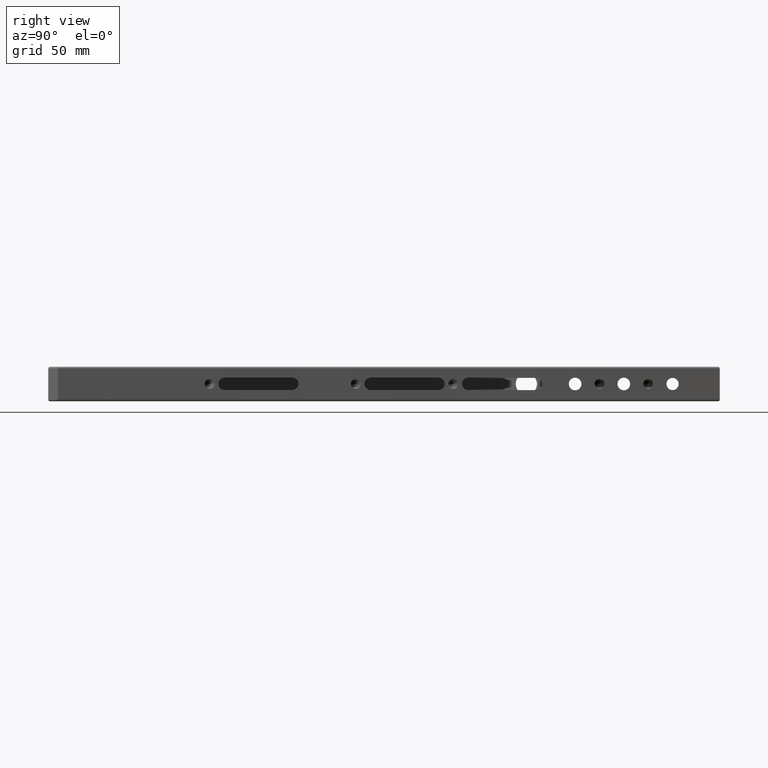
[diagram: clean part render]
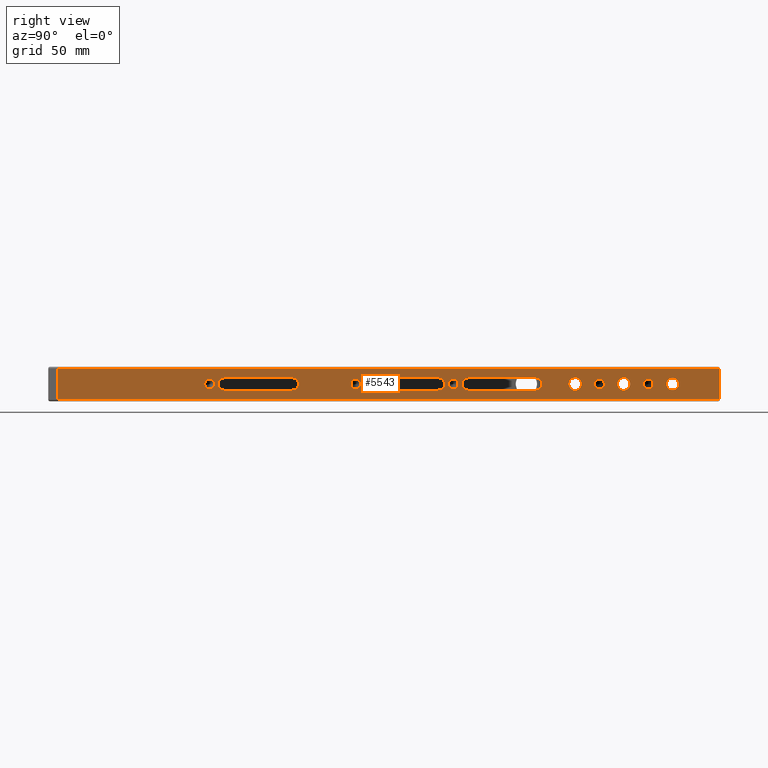
[diagram: same view with one face highlighted and labeled with its STEP entity id]
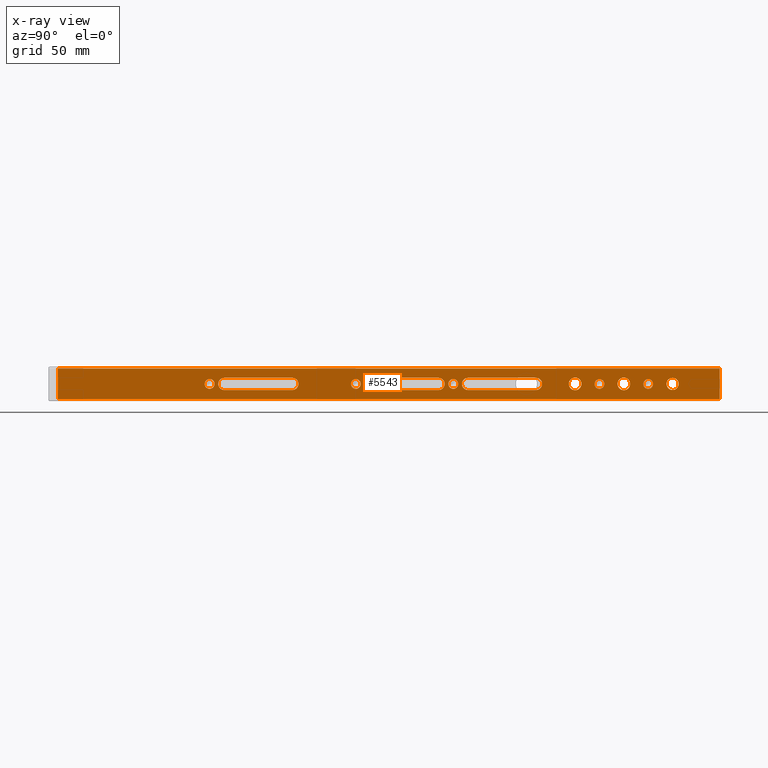
[diagram: x-ray of the same camera — body ghosted, the highlighted face saturated]
A machine part, right view. The second image highlights one B-rep face of the part: STEP entity #5543.
The next image is the same camera in x-ray: the body ghosted, the highlighted face saturated — about 0% of this face is hidden behind the body in this view.
In plain terms, the highlighted planar face has unit normal (-1, 0, 0).
Its self-contained STEP definition (entity closure, byte-faithful):
#3 = VERTEX_POINT ( 'NONE', #4955 ) ;
#4 = CIRCLE ( 'NONE', #3003, 2.552699999999990900 ) ;
#6 = ORIENTED_EDGE ( 'NONE', *, *, #3664, .F. ) ;
#60 = EDGE_LOOP ( 'NONE', ( #2149, #4770 ) ) ;
#66 = DIRECTION ( 'NONE',  ( 0.0000000000000000000, 0.0000000000000000000, -1.000000000000000000 ) ) ;
#86 = EDGE_CURVE ( 'NONE', #4364, #3, #5288, .T. ) ;
#92 = CARTESIAN_POINT ( 'NONE',  ( 150.0000000000000000, 218.7999999999999800, 5.800000000000471400 ) ) ;
#93 = DIRECTION ( 'NONE',  ( 1.000000000000000000, -0.0000000000000000000, -0.0000000000000000000 ) ) ;
#110 = CARTESIAN_POINT ( 'NONE',  ( 150.0000000000000000, 274.6000000000000800, 9.000000000000007100 ) ) ;
#131 = DIRECTION ( 'NONE',  ( 1.000000000000000000, 0.0000000000000000000, 0.0000000000000000000 ) ) ;
#140 = ORIENTED_EDGE ( 'NONE', *, *, #2060, .T. ) ;
#142 = ORIENTED_EDGE ( 'NONE', *, *, #4327, .T. ) ;
#168 = CARTESIAN_POINT ( 'NONE',  ( 150.0000000000000000, 312.7000000000000500, 9.000000000000007100 ) ) ;
#191 = EDGE_CURVE ( 'NONE', #4142, #1281, #2075, .T. ) ;
#196 = CARTESIAN_POINT ( 'NONE',  ( 150.0000000000000000, 287.3000000000000700, 6.447299999999989600 ) ) ;
#216 = VERTEX_POINT ( 'NONE', #1004 ) ;
#221 = CARTESIAN_POINT ( 'NONE',  ( 150.0000000000000000, 160.3000000000000100, 8.999999999999952000 ) ) ;
#222 = DIRECTION ( 'NONE',  ( 1.000000000000000000, -0.0000000000000000000, -0.0000000000000000000 ) ) ;
#231 = LINE ( 'NONE', #3058, #4709 ) ;
#233 = EDGE_CURVE ( 'NONE', #1765, #4706, #3208, .T. ) ;
#240 = CARTESIAN_POINT ( 'NONE',  ( 150.0000000000000000, 84.10000000000000900, 11.55269999999995700 ) ) ;
#256 = ORIENTED_EDGE ( 'NONE', *, *, #2995, .F. ) ;
#262 = VERTEX_POINT ( 'NONE', #2353 ) ;
#268 = DIRECTION ( 'NONE',  ( -0.0000000000000000000, -1.000000000000000000, -0.0000000000000000000 ) ) ;
#272 = EDGE_CURVE ( 'NONE', #1729, #1273, #2815, .T. ) ;
#313 = EDGE_CURVE ( 'NONE', #4472, #262, #1532, .T. ) ;
#341 = AXIS2_PLACEMENT_3D ( 'NONE', #4188, #371, #1256 ) ;
#370 = CIRCLE ( 'NONE', #705, 2.552700000000005100 ) ;
#371 = DIRECTION ( 'NONE',  ( -1.000000000000000000, -0.0000000000000000000, -0.0000000000000000000 ) ) ;
#409 = AXIS2_PLACEMENT_3D ( 'NONE', #2482, #5512, #2904 ) ;
#423 = CARTESIAN_POINT ( 'NONE',  ( 150.0000000000000000, 274.6000000000000800, 9.000000000000007100 ) ) ;
#424 = CARTESIAN_POINT ( 'NONE',  ( 150.0000000000000000, 211.1000000000000500, 6.447300000000017100 ) ) ;
#444 = DIRECTION ( 'NONE',  ( -1.000000000000000000, 0.0000000000000000000, 0.0000000000000000000 ) ) ;
#500 = CARTESIAN_POINT ( 'NONE',  ( 149.9999999999999700, 325.4000000000000300, 5.825000000000024200 ) ) ;
#502 = AXIS2_PLACEMENT_3D ( 'NONE', #1570, #4596, #2004 ) ;
#533 = DIRECTION ( 'NONE',  ( 0.0000000000000000000, 0.0000000000000000000, -1.000000000000000000 ) ) ;
#557 = DIRECTION ( 'NONE',  ( 0.0000000000000000000, 0.0000000000000000000, -1.000000000000000000 ) ) ;
#589 = AXIS2_PLACEMENT_3D ( 'NONE', #3618, #1026, #4065 ) ;
#591 = DIRECTION ( 'NONE',  ( 0.0000000000000000000, 0.0000000000000000000, -1.000000000000000000 ) ) ;
#594 = FACE_BOUND ( 'NONE', #4239, .T. ) ;
#611 = DIRECTION ( 'NONE',  ( 1.000000000000000000, -0.0000000000000000000, -0.0000000000000000000 ) ) ;
#636 = CIRCLE ( 'NONE', #409, 2.552699999999990900 ) ;
#642 = DIRECTION ( 'NONE',  ( 1.000000000000000000, 0.0000000000000000000, 0.0000000000000000000 ) ) ;
#647 = DIRECTION ( 'NONE',  ( 0.0000000000000000000, 0.0000000000000000000, -1.000000000000000000 ) ) ;
#663 = EDGE_CURVE ( 'NONE', #4025, #3725, #1526, .T. ) ;
#681 = VERTEX_POINT ( 'NONE', #2331 ) ;
#705 = AXIS2_PLACEMENT_3D ( 'NONE', #3704, #1116, #4156 ) ;
#723 = CARTESIAN_POINT ( 'NONE',  ( 150.0000000000000000, 0.0000000000000000000, 1.000000000000000900 ) ) ;
#728 = EDGE_LOOP ( 'NONE', ( #3954, #3574, #2252, #256 ) ) ;
#738 = VERTEX_POINT ( 'NONE', #3475 ) ;
#746 = FACE_BOUND ( 'NONE', #2382, .T. ) ;
#824 = AXIS2_PLACEMENT_3D ( 'NONE', #1865, #131, #557 ) ;
#846 = DIRECTION ( 'NONE',  ( 1.000000000000000000, -0.0000000000000000000, -0.0000000000000000000 ) ) ;
#848 = EDGE_CURVE ( 'NONE', #1273, #1729, #636, .T. ) ;
#859 = DIRECTION ( 'NONE',  ( 0.0000000000000000000, 0.0000000000000000000, -1.000000000000000000 ) ) ;
#861 = ORIENTED_EDGE ( 'NONE', *, *, #86, .F. ) ;
#864 = VECTOR ( 'NONE', #3573, 1000.000000000000000 ) ;
#878 = CARTESIAN_POINT ( 'NONE',  ( 149.9999999999999700, 325.4000000000000300, 9.000000000000007100 ) ) ;
#882 = EDGE_LOOP ( 'NONE', ( #3591, #3368 ) ) ;
#917 = EDGE_CURVE ( 'NONE', #2322, #4190, #370, .T. ) ;
#986 = AXIS2_PLACEMENT_3D ( 'NONE', #221, #3231, #647 ) ;
#995 = CARTESIAN_POINT ( 'NONE',  ( 150.0000000000000000, 167.9999999999999700, 5.800000000000304500 ) ) ;
#1004 = CARTESIAN_POINT ( 'NONE',  ( 150.0000000000000000, 274.6000000000000800, 5.700000000000062400 ) ) ;
#1007 = ORIENTED_EDGE ( 'NONE', *, *, #2735, .F. ) ;
#1013 = ORIENTED_EDGE ( 'NONE', *, *, #3487, .F. ) ;
#1026 = DIRECTION ( 'NONE',  ( 1.000000000000000000, 0.0000000000000000000, 0.0000000000000000000 ) ) ;
#1116 = DIRECTION ( 'NONE',  ( 1.000000000000000000, -0.0000000000000000000, -0.0000000000000000000 ) ) ;
#1124 = CARTESIAN_POINT ( 'NONE',  ( 150.0000000000000000, 203.4000000000000100, 12.20000000000032300 ) ) ;
#1141 = EDGE_LOOP ( 'NONE', ( #3714, #1246 ) ) ;
#1159 = CARTESIAN_POINT ( 'NONE',  ( 150.0000000000000000, 312.7000000000000500, 6.447299999999989600 ) ) ;
#1163 = ORIENTED_EDGE ( 'NONE', *, *, #5049, .F. ) ;
#1213 = AXIS2_PLACEMENT_3D ( 'NONE', #2545, #5574, #2971 ) ;
#1246 = ORIENTED_EDGE ( 'NONE', *, *, #2176, .F. ) ;
#1256 = DIRECTION ( 'NONE',  ( 0.0000000000000000000, 0.0000000000000000000, 1.000000000000000000 ) ) ;
#1273 = VERTEX_POINT ( 'NONE', #424 ) ;
#1281 = VERTEX_POINT ( 'NONE', #5612 ) ;
#1283 = EDGE_CURVE ( 'NONE', #3725, #4025, #5581, .T. ) ;
#1303 = CARTESIAN_POINT ( 'NONE',  ( 150.0000000000000000, 5.000000000000004400, 18.00000000000001400 ) ) ;
#1319 = DIRECTION ( 'NONE',  ( 0.0000000000000000000, 0.0000000000000000000, 1.000000000000000000 ) ) ;
#1365 = AXIS2_PLACEMENT_3D ( 'NONE', #1964, #5000, #2405 ) ;
#1395 = AXIS2_PLACEMENT_3D ( 'NONE', #3195, #611, #4016 ) ;
#1441 = EDGE_CURVE ( 'NONE', #681, #4571, #4161, .T. ) ;
#1465 = CARTESIAN_POINT ( 'NONE',  ( 150.0000000000000000, 127.1999999999999700, 5.800000000000138400 ) ) ;
#1526 = CIRCLE ( 'NONE', #341, 3.174999999999983400 ) ;
#1532 = LINE ( 'NONE', #2960, #2550 ) ;
#1535 = EDGE_CURVE ( 'NONE', #2188, #1786, #4896, .T. ) ;
#1553 = CARTESIAN_POINT ( 'NONE',  ( 150.0000000000000000, 5.000000000000004400, 17.00000000000001400 ) ) ;
#1563 = LINE ( 'NONE', #723, #3864 ) ;
#1570 = CARTESIAN_POINT ( 'NONE',  ( 150.0000000000000000, 254.1999999999999900, 9.000000000000563100 ) ) ;
#1625 = EDGE_LOOP ( 'NONE', ( #3460, #3519, #3043, #2027 ) ) ;
#1648 = CIRCLE ( 'NONE', #502, 3.199999999999980600 ) ;
#1679 = DIRECTION ( 'NONE',  ( -0.0000000000000000000, 1.000000000000000000, 2.602085213965212100E-016 ) ) ;
#1696 = EDGE_LOOP ( 'NONE', ( #3991, #6 ) ) ;
#1704 = EDGE_CURVE ( 'NONE', #4706, #1765, #3248, .T. ) ;
#1716 = VERTEX_POINT ( 'NONE', #4984 ) ;
#1721 = CIRCLE ( 'NONE', #4351, 2.552700000000018800 ) ;
#1729 = VERTEX_POINT ( 'NONE', #3261 ) ;
#1736 = EDGE_CURVE ( 'NONE', #1829, #5297, #4146, .T. ) ;
#1762 = FACE_BOUND ( 'NONE', #1141, .T. ) ;
#1765 = VERTEX_POINT ( 'NONE', #5475 ) ;
#1785 = EDGE_CURVE ( 'NONE', #3225, #2188, #4881, .T. ) ;
#1786 = VERTEX_POINT ( 'NONE', #995 ) ;
#1800 = DIRECTION ( 'NONE',  ( 0.0000000000000000000, -1.000000000000000000, -1.734723475976805600E-016 ) ) ;
#1829 = VERTEX_POINT ( 'NONE', #3607 ) ;
#1843 = CARTESIAN_POINT ( 'NONE',  ( 150.0000000000000000, 274.6000000000000800, 12.29999999999995300 ) ) ;
#1851 = DIRECTION ( 'NONE',  ( 1.000000000000000000, 0.0000000000000000000, 0.0000000000000000000 ) ) ;
#1865 = CARTESIAN_POINT ( 'NONE',  ( 150.0000000000000000, 127.2000000000000000, 9.000000000000119000 ) ) ;
#1891 = FACE_BOUND ( 'NONE', #2918, .T. ) ;
#1899 = AXIS2_PLACEMENT_3D ( 'NONE', #4892, #2292, #5336 ) ;
#1901 = EDGE_CURVE ( 'NONE', #4787, #3647, #2171, .T. ) ;
#1964 = CARTESIAN_POINT ( 'NONE',  ( 150.0000000000000000, 287.3000000000000700, 9.000000000000007100 ) ) ;
#1965 = DIRECTION ( 'NONE',  ( 1.000000000000000000, 0.0000000000000000000, 0.0000000000000000000 ) ) ;
#2000 = AXIS2_PLACEMENT_3D ( 'NONE', #2168, #444, #3467 ) ;
#2004 = DIRECTION ( 'NONE',  ( 0.0000000000000000000, 0.0000000000000000000, -1.000000000000000000 ) ) ;
#2027 = ORIENTED_EDGE ( 'NONE', *, *, #1535, .F. ) ;
#2036 = FACE_BOUND ( 'NONE', #2385, .T. ) ;
#2038 = ORIENTED_EDGE ( 'NONE', *, *, #1901, .F. ) ;
#2060 = EDGE_CURVE ( 'NONE', #4862, #738, #1563, .T. ) ;
#2075 = CIRCLE ( 'NONE', #824, 3.199999999999980600 ) ;
#2086 = VECTOR ( 'NONE', #1679, 1000.000000000000000 ) ;
#2087 = VERTEX_POINT ( 'NONE', #1159 ) ;
#2089 = CARTESIAN_POINT ( 'NONE',  ( 149.9999999999999700, 325.4000000000000300, 12.17499999999999200 ) ) ;
#2090 = CARTESIAN_POINT ( 'NONE',  ( 150.0000000000000000, 350.0000000000000000, 18.00000000000001400 ) ) ;
#2107 = LINE ( 'NONE', #2090, #4546 ) ;
#2115 = CIRCLE ( 'NONE', #3334, 2.552700000000018800 ) ;
#2149 = ORIENTED_EDGE ( 'NONE', *, *, #1704, .F. ) ;
#2168 = CARTESIAN_POINT ( 'NONE',  ( 150.0000000000000000, 0.0000000000000000000, 18.00000000000001400 ) ) ;
#2171 = CIRCLE ( 'NONE', #4278, 3.199999999999980600 ) ;
#2176 = EDGE_CURVE ( 'NONE', #1716, #2087, #1721, .T. ) ;
#2188 = VERTEX_POINT ( 'NONE', #4914 ) ;
#2252 = ORIENTED_EDGE ( 'NONE', *, *, #313, .F. ) ;
#2264 = CARTESIAN_POINT ( 'NONE',  ( 150.0000000000000000, 91.79999999999999700, 5.800000000000027400 ) ) ;
#2292 = DIRECTION ( 'NONE',  ( 1.000000000000000000, 0.0000000000000000000, 0.0000000000000000000 ) ) ;
#2322 = VERTEX_POINT ( 'NONE', #5459 ) ;
#2331 = CARTESIAN_POINT ( 'NONE',  ( 150.0000000000000000, 300.0000000000000600, 5.700000000000058800 ) ) ;
#2332 = AXIS2_PLACEMENT_3D ( 'NONE', #4567, #1965, #5001 ) ;
#2353 = CARTESIAN_POINT ( 'NONE',  ( 150.0000000000000000, 254.1999999999999900, 5.800000000000582500 ) ) ;
#2382 = EDGE_LOOP ( 'NONE', ( #5344, #1163 ) ) ;
#2385 = EDGE_LOOP ( 'NONE', ( #4469, #4658 ) ) ;
#2405 = DIRECTION ( 'NONE',  ( 0.0000000000000000000, 0.0000000000000000000, -1.000000000000000000 ) ) ;
#2441 = CARTESIAN_POINT ( 'NONE',  ( 150.0000000000000000, 91.79999999999999700, 12.19999999999998900 ) ) ;
#2463 = AXIS2_PLACEMENT_3D ( 'NONE', #878, #3911, #1319 ) ;
#2482 = CARTESIAN_POINT ( 'NONE',  ( 150.0000000000000000, 211.1000000000000500, 9.000000000000007100 ) ) ;
#2545 = CARTESIAN_POINT ( 'NONE',  ( 150.0000000000000000, 203.4000000000000100, 9.000000000000396100 ) ) ;
#2550 = VECTOR ( 'NONE', #3396, 1000.000000000000000 ) ;
#2578 = VECTOR ( 'NONE', #4041, 1000.000000000000000 ) ;
#2616 = VERTEX_POINT ( 'NONE', #2964 ) ;
#2655 = DIRECTION ( 'NONE',  ( 1.000000000000000000, -0.0000000000000000000, -0.0000000000000000000 ) ) ;
#2677 = CARTESIAN_POINT ( 'NONE',  ( 150.0000000000000000, 312.7000000000000500, 9.000000000000007100 ) ) ;
#2735 = EDGE_CURVE ( 'NONE', #3647, #4142, #4393, .T. ) ;
#2745 = LINE ( 'NONE', #1303, #4047 ) ;
#2805 = CARTESIAN_POINT ( 'NONE',  ( 150.0000000000000000, 211.1000000000000500, 9.000000000000007100 ) ) ;
#2815 = CIRCLE ( 'NONE', #2846, 2.552699999999990900 ) ;
#2846 = AXIS2_PLACEMENT_3D ( 'NONE', #2805, #222, #3232 ) ;
#2904 = DIRECTION ( 'NONE',  ( 0.0000000000000000000, 0.0000000000000000000, -1.000000000000000000 ) ) ;
#2905 = CARTESIAN_POINT ( 'NONE',  ( 150.0000000000000000, 5.000000000000004400, 1.000000000000000900 ) ) ;
#2908 = FACE_BOUND ( 'NONE', #60, .T. ) ;
#2918 = EDGE_LOOP ( 'NONE', ( #1013, #3639, #1007, #2038 ) ) ;
#2960 = CARTESIAN_POINT ( 'NONE',  ( 150.0000000000000000, 228.8000000000000100, 5.800000000000471400 ) ) ;
#2964 = CARTESIAN_POINT ( 'NONE',  ( 150.0000000000000000, 218.7999999999999800, 12.20000000000043300 ) ) ;
#2971 = DIRECTION ( 'NONE',  ( 0.0000000000000000000, 0.0000000000000000000, -1.000000000000000000 ) ) ;
#2985 = CIRCLE ( 'NONE', #3994, 2.552700000000005100 ) ;
#2988 = VECTOR ( 'NONE', #268, 1000.000000000000000 ) ;
#2995 = EDGE_CURVE ( 'NONE', #2616, #4472, #4053, .T. ) ;
#3003 = AXIS2_PLACEMENT_3D ( 'NONE', #5259, #2655, #66 ) ;
#3034 = FACE_BOUND ( 'NONE', #728, .T. ) ;
#3043 = ORIENTED_EDGE ( 'NONE', *, *, #3942, .F. ) ;
#3058 = CARTESIAN_POINT ( 'NONE',  ( 150.0000000000000000, 228.8000000000000100, 12.20000000000043300 ) ) ;
#3107 = DIRECTION ( 'NONE',  ( 0.0000000000000000000, 0.0000000000000000000, -1.000000000000000000 ) ) ;
#3124 = DIRECTION ( 'NONE',  ( 1.000000000000000000, 0.0000000000000000000, 0.0000000000000000000 ) ) ;
#3180 = DIRECTION ( 'NONE',  ( 1.000000000000000000, -0.0000000000000000000, -0.0000000000000000000 ) ) ;
#3195 = CARTESIAN_POINT ( 'NONE',  ( 150.0000000000000000, 287.3000000000000700, 9.000000000000007100 ) ) ;
#3208 = CIRCLE ( 'NONE', #1395, 2.552700000000018800 ) ;
#3220 = CARTESIAN_POINT ( 'NONE',  ( 150.0000000000000000, 91.79999999999999700, 9.000000000000007100 ) ) ;
#3225 = VERTEX_POINT ( 'NONE', #1124 ) ;
#3231 = DIRECTION ( 'NONE',  ( 1.000000000000000000, -0.0000000000000000000, -0.0000000000000000000 ) ) ;
#3232 = DIRECTION ( 'NONE',  ( 0.0000000000000000000, 0.0000000000000000000, -1.000000000000000000 ) ) ;
#3248 = CIRCLE ( 'NONE', #1365, 2.552700000000018800 ) ;
#3261 = CARTESIAN_POINT ( 'NONE',  ( 150.0000000000000000, 211.1000000000000500, 11.55270000000000000 ) ) ;
#3310 = DIRECTION ( 'NONE',  ( 0.0000000000000000000, 1.000000000000000000, 0.0000000000000000000 ) ) ;
#3334 = AXIS2_PLACEMENT_3D ( 'NONE', #2677, #93, #3107 ) ;
#3368 = ORIENTED_EDGE ( 'NONE', *, *, #663, .T. ) ;
#3379 = EDGE_CURVE ( 'NONE', #5500, #3225, #4370, .T. ) ;
#3396 = DIRECTION ( 'NONE',  ( -0.0000000000000000000, 1.000000000000000000, 2.602085213965208700E-016 ) ) ;
#3422 = CARTESIAN_POINT ( 'NONE',  ( 150.0000000000000000, 84.10000000000000900, 8.999999999999952000 ) ) ;
#3444 = DIRECTION ( 'NONE',  ( 1.000000000000000000, 0.0000000000000000000, 0.0000000000000000000 ) ) ;
#3460 = ORIENTED_EDGE ( 'NONE', *, *, #1785, .F. ) ;
#3467 = DIRECTION ( 'NONE',  ( 0.0000000000000000000, 0.0000000000000000000, 1.000000000000000000 ) ) ;
#3475 = CARTESIAN_POINT ( 'NONE',  ( 150.0000000000000000, 350.0000000000000000, 1.000000000000000900 ) ) ;
#3487 = EDGE_CURVE ( 'NONE', #1281, #4787, #3962, .T. ) ;
#3519 = ORIENTED_EDGE ( 'NONE', *, *, #3379, .F. ) ;
#3573 = DIRECTION ( 'NONE',  ( -0.0000000000000000000, 1.000000000000000000, 2.602085213965208700E-016 ) ) ;
#3574 = ORIENTED_EDGE ( 'NONE', *, *, #4767, .F. ) ;
#3586 = EDGE_CURVE ( 'NONE', #4426, #2616, #231, .T. ) ;
#3591 = ORIENTED_EDGE ( 'NONE', *, *, #1283, .T. ) ;
#3607 = CARTESIAN_POINT ( 'NONE',  ( 150.0000000000000000, 350.0000000000000000, 17.00000000000001400 ) ) ;
#3618 = CARTESIAN_POINT ( 'NONE',  ( 150.0000000000000000, 300.0000000000000600, 9.000000000000007100 ) ) ;
#3619 = EDGE_LOOP ( 'NONE', ( #3662, #5361 ) ) ;
#3639 = ORIENTED_EDGE ( 'NONE', *, *, #191, .F. ) ;
#3647 = VERTEX_POINT ( 'NONE', #2264 ) ;
#3662 = ORIENTED_EDGE ( 'NONE', *, *, #917, .F. ) ;
#3664 = EDGE_CURVE ( 'NONE', #4571, #681, #4431, .T. ) ;
#3668 = DIRECTION ( 'NONE',  ( 0.0000000000000000000, 0.0000000000000000000, -1.000000000000000000 ) ) ;
#3704 = CARTESIAN_POINT ( 'NONE',  ( 150.0000000000000000, 84.10000000000000900, 8.999999999999952000 ) ) ;
#3714 = ORIENTED_EDGE ( 'NONE', *, *, #4617, .F. ) ;
#3725 = VERTEX_POINT ( 'NONE', #2089 ) ;
#3822 = VECTOR ( 'NONE', #5220, 1000.000000000000000 ) ;
#3864 = VECTOR ( 'NONE', #3310, 1000.000000000000000 ) ;
#3875 = DIRECTION ( 'NONE',  ( 0.0000000000000000000, 0.0000000000000000000, -1.000000000000000000 ) ) ;
#3900 = PLANE ( 'NONE',  #2000 ) ;
#3911 = DIRECTION ( 'NONE',  ( -1.000000000000000000, -0.0000000000000000000, -0.0000000000000000000 ) ) ;
#3915 = CIRCLE ( 'NONE', #4883, 3.299999999999945200 ) ;
#3916 = CARTESIAN_POINT ( 'NONE',  ( 150.0000000000000000, 160.3000000000000100, 6.447299999999961200 ) ) ;
#3926 = FACE_OUTER_BOUND ( 'NONE', #5503, .T. ) ;
#3942 = EDGE_CURVE ( 'NONE', #1786, #5500, #4598, .T. ) ;
#3954 = ORIENTED_EDGE ( 'NONE', *, *, #3586, .F. ) ;
#3962 = LINE ( 'NONE', #5197, #3822 ) ;
#3991 = ORIENTED_EDGE ( 'NONE', *, *, #1441, .F. ) ;
#3994 = AXIS2_PLACEMENT_3D ( 'NONE', #3422, #846, #3875 ) ;
#4016 = DIRECTION ( 'NONE',  ( 0.0000000000000000000, 0.0000000000000000000, -1.000000000000000000 ) ) ;
#4025 = VERTEX_POINT ( 'NONE', #500 ) ;
#4041 = DIRECTION ( 'NONE',  ( 0.0000000000000000000, -1.000000000000000000, -1.734723475976805600E-016 ) ) ;
#4046 = EDGE_CURVE ( 'NONE', #216, #4505, #3915, .T. ) ;
#4047 = VECTOR ( 'NONE', #4339, 1000.000000000000000 ) ;
#4053 = CIRCLE ( 'NONE', #1899, 3.199999999999980600 ) ;
#4059 = FACE_BOUND ( 'NONE', #3619, .T. ) ;
#4065 = DIRECTION ( 'NONE',  ( 0.0000000000000000000, 0.0000000000000000000, -1.000000000000000000 ) ) ;
#4142 = VERTEX_POINT ( 'NONE', #1465 ) ;
#4146 = LINE ( 'NONE', #1553, #2988 ) ;
#4156 = DIRECTION ( 'NONE',  ( 0.0000000000000000000, 0.0000000000000000000, -1.000000000000000000 ) ) ;
#4161 = CIRCLE ( 'NONE', #589, 3.299999999999948800 ) ;
#4188 = CARTESIAN_POINT ( 'NONE',  ( 149.9999999999999700, 325.4000000000000300, 9.000000000000007100 ) ) ;
#4190 = VERTEX_POINT ( 'NONE', #240 ) ;
#4208 = FACE_BOUND ( 'NONE', #1625, .T. ) ;
#4239 = EDGE_LOOP ( 'NONE', ( #861, #5486 ) ) ;
#4275 = CARTESIAN_POINT ( 'NONE',  ( 150.0000000000000000, 101.7999999999999800, 5.800000000000027400 ) ) ;
#4278 = AXIS2_PLACEMENT_3D ( 'NONE', #3220, #642, #3668 ) ;
#4327 = EDGE_CURVE ( 'NONE', #5297, #4862, #2745, .T. ) ;
#4339 = DIRECTION ( 'NONE',  ( 0.0000000000000000000, 0.0000000000000000000, -1.000000000000000000 ) ) ;
#4351 = AXIS2_PLACEMENT_3D ( 'NONE', #168, #3180, #591 ) ;
#4364 = VERTEX_POINT ( 'NONE', #3916 ) ;
#4370 = CIRCLE ( 'NONE', #1213, 3.199999999999979700 ) ;
#4393 = LINE ( 'NONE', #4275, #2086 ) ;
#4426 = VERTEX_POINT ( 'NONE', #4821 ) ;
#4431 = CIRCLE ( 'NONE', #5545, 3.299999999999948800 ) ;
#4446 = CARTESIAN_POINT ( 'NONE',  ( 150.0000000000000000, 300.0000000000000600, 9.000000000000007100 ) ) ;
#4469 = ORIENTED_EDGE ( 'NONE', *, *, #848, .F. ) ;
#4472 = VERTEX_POINT ( 'NONE', #92 ) ;
#4505 = VERTEX_POINT ( 'NONE', #1843 ) ;
#4546 = VECTOR ( 'NONE', #4698, 1000.000000000000000 ) ;
#4567 = CARTESIAN_POINT ( 'NONE',  ( 150.0000000000000000, 167.9999999999999700, 9.000000000000286000 ) ) ;
#4571 = VERTEX_POINT ( 'NONE', #5354 ) ;
#4577 = AXIS2_PLACEMENT_3D ( 'NONE', #423, #3444, #859 ) ;
#4596 = DIRECTION ( 'NONE',  ( 1.000000000000000000, 0.0000000000000000000, 0.0000000000000000000 ) ) ;
#4598 = LINE ( 'NONE', #5313, #864 ) ;
#4617 = EDGE_CURVE ( 'NONE', #2087, #1716, #2115, .T. ) ;
#4658 = ORIENTED_EDGE ( 'NONE', *, *, #272, .F. ) ;
#4698 = DIRECTION ( 'NONE',  ( -0.0000000000000000000, -0.0000000000000000000, -1.000000000000000000 ) ) ;
#4706 = VERTEX_POINT ( 'NONE', #196 ) ;
#4709 = VECTOR ( 'NONE', #1800, 1000.000000000000000 ) ;
#4731 = CARTESIAN_POINT ( 'NONE',  ( 150.0000000000000000, 203.3999999999999800, 5.800000000000360400 ) ) ;
#4767 = EDGE_CURVE ( 'NONE', #262, #4426, #1648, .T. ) ;
#4770 = ORIENTED_EDGE ( 'NONE', *, *, #233, .F. ) ;
#4786 = ORIENTED_EDGE ( 'NONE', *, *, #4961, .F. ) ;
#4787 = VERTEX_POINT ( 'NONE', #2441 ) ;
#4821 = CARTESIAN_POINT ( 'NONE',  ( 150.0000000000000000, 254.1999999999999900, 12.20000000000048800 ) ) ;
#4862 = VERTEX_POINT ( 'NONE', #2905 ) ;
#4880 = DIRECTION ( 'NONE',  ( 0.0000000000000000000, 0.0000000000000000000, -1.000000000000000000 ) ) ;
#4881 = LINE ( 'NONE', #5331, #2578 ) ;
#4883 = AXIS2_PLACEMENT_3D ( 'NONE', #110, #3124, #533 ) ;
#4892 = CARTESIAN_POINT ( 'NONE',  ( 150.0000000000000000, 218.7999999999999800, 9.000000000000451200 ) ) ;
#4896 = CIRCLE ( 'NONE', #2332, 3.199999999999980600 ) ;
#4914 = CARTESIAN_POINT ( 'NONE',  ( 150.0000000000000000, 167.9999999999999700, 12.20000000000026600 ) ) ;
#4955 = CARTESIAN_POINT ( 'NONE',  ( 150.0000000000000000, 160.3000000000000100, 11.55269999999994300 ) ) ;
#4961 = EDGE_CURVE ( 'NONE', #1829, #738, #2107, .T. ) ;
#4966 = ORIENTED_EDGE ( 'NONE', *, *, #1736, .T. ) ;
#4984 = CARTESIAN_POINT ( 'NONE',  ( 150.0000000000000000, 312.7000000000000500, 11.55270000000002600 ) ) ;
#5000 = DIRECTION ( 'NONE',  ( 1.000000000000000000, -0.0000000000000000000, -0.0000000000000000000 ) ) ;
#5001 = DIRECTION ( 'NONE',  ( 0.0000000000000000000, 0.0000000000000000000, -1.000000000000000000 ) ) ;
#5005 = CARTESIAN_POINT ( 'NONE',  ( 150.0000000000000000, 5.000000000000004400, 17.00000000000001400 ) ) ;
#5028 = EDGE_CURVE ( 'NONE', #4190, #2322, #2985, .T. ) ;
#5049 = EDGE_CURVE ( 'NONE', #4505, #216, #5295, .T. ) ;
#5096 = FACE_BOUND ( 'NONE', #882, .T. ) ;
#5142 = EDGE_CURVE ( 'NONE', #3, #4364, #4, .T. ) ;
#5197 = CARTESIAN_POINT ( 'NONE',  ( 150.0000000000000000, 101.8000000000000000, 12.19999999999998900 ) ) ;
#5220 = DIRECTION ( 'NONE',  ( 0.0000000000000000000, -1.000000000000000000, -1.734723475976805600E-016 ) ) ;
#5223 = FACE_BOUND ( 'NONE', #1696, .T. ) ;
#5259 = CARTESIAN_POINT ( 'NONE',  ( 150.0000000000000000, 160.3000000000000100, 8.999999999999952000 ) ) ;
#5288 = CIRCLE ( 'NONE', #986, 2.552699999999990900 ) ;
#5295 = CIRCLE ( 'NONE', #4577, 3.299999999999945200 ) ;
#5297 = VERTEX_POINT ( 'NONE', #5005 ) ;
#5313 = CARTESIAN_POINT ( 'NONE',  ( 150.0000000000000000, 178.0000000000000000, 5.800000000000304500 ) ) ;
#5331 = CARTESIAN_POINT ( 'NONE',  ( 150.0000000000000000, 178.0000000000000000, 12.20000000000026600 ) ) ;
#5336 = DIRECTION ( 'NONE',  ( 0.0000000000000000000, 0.0000000000000000000, -1.000000000000000000 ) ) ;
#5344 = ORIENTED_EDGE ( 'NONE', *, *, #4046, .F. ) ;
#5354 = CARTESIAN_POINT ( 'NONE',  ( 150.0000000000000000, 300.0000000000000600, 12.29999999999995600 ) ) ;
#5361 = ORIENTED_EDGE ( 'NONE', *, *, #5028, .F. ) ;
#5459 = CARTESIAN_POINT ( 'NONE',  ( 150.0000000000000000, 84.10000000000000900, 6.447299999999947900 ) ) ;
#5475 = CARTESIAN_POINT ( 'NONE',  ( 150.0000000000000000, 287.3000000000000700, 11.55270000000002600 ) ) ;
#5486 = ORIENTED_EDGE ( 'NONE', *, *, #5142, .F. ) ;
#5500 = VERTEX_POINT ( 'NONE', #4731 ) ;
#5503 = EDGE_LOOP ( 'NONE', ( #142, #140, #4786, #4966 ) ) ;
#5512 = DIRECTION ( 'NONE',  ( 1.000000000000000000, -0.0000000000000000000, -0.0000000000000000000 ) ) ;
#5543 = ADVANCED_FACE ( 'NONE', ( #1891, #4208, #3034, #746, #5223, #2036, #4059, #2908, #1762, #594, #5096, #3926 ), #3900, .F. ) ;
#5545 = AXIS2_PLACEMENT_3D ( 'NONE', #4446, #1851, #4880 ) ;
#5574 = DIRECTION ( 'NONE',  ( 1.000000000000000000, 0.0000000000000000000, 0.0000000000000000000 ) ) ;
#5581 = CIRCLE ( 'NONE', #2463, 3.174999999999983400 ) ;
#5612 = CARTESIAN_POINT ( 'NONE',  ( 150.0000000000000000, 127.2000000000000000, 12.20000000000009900 ) ) ;